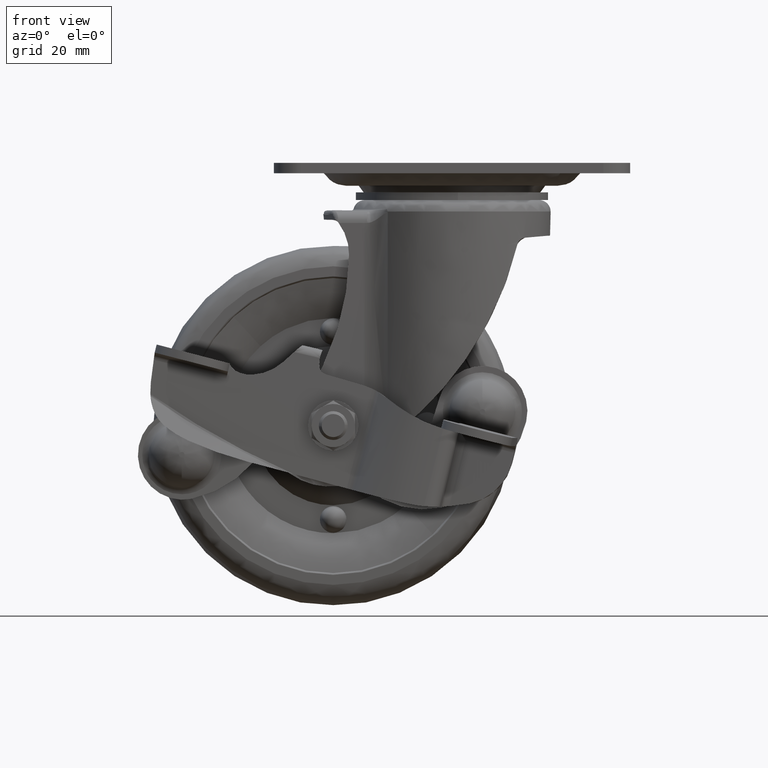
[diagram: clean part render]
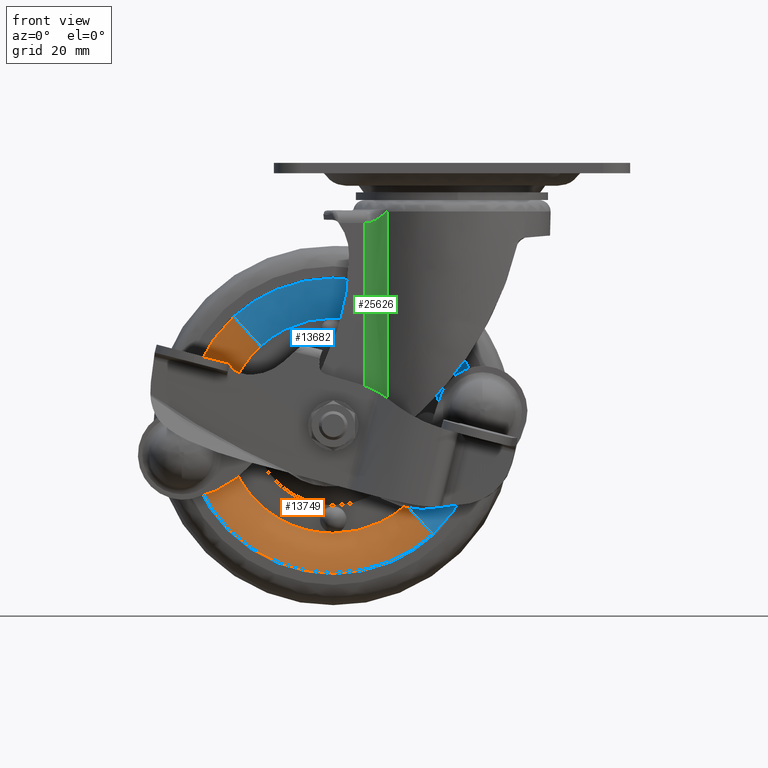
[diagram: same view with three faces highlighted in distinct colors, each labeled with its STEP entity id]
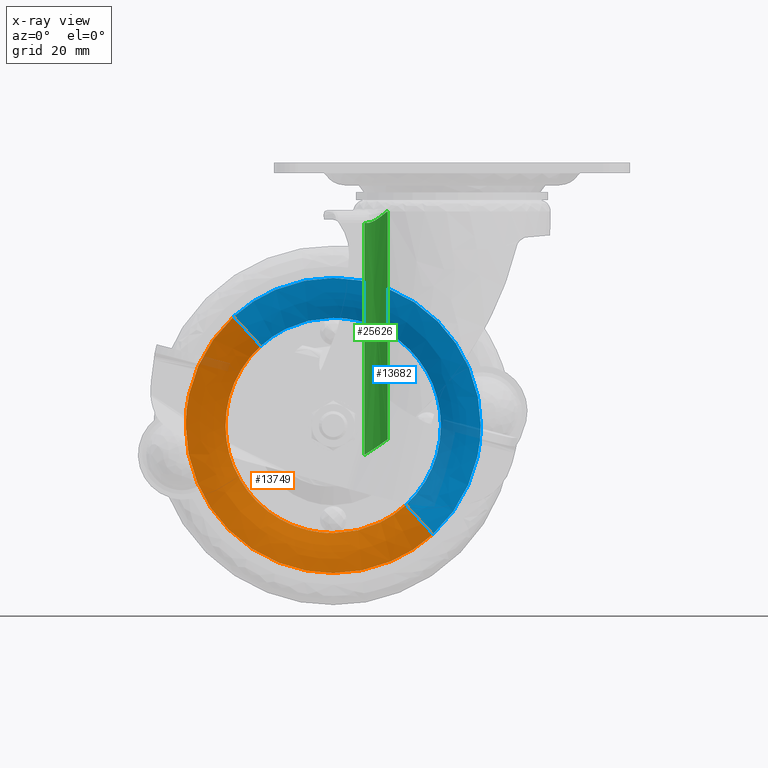
[diagram: x-ray of the same camera — body ghosted, the three highlighted faces saturated]
A machine part, front view with three faces highlighted in distinct colors.
The next image is the same camera in x-ray (body ghosted, the three faces saturated) — at least one of them is partly hidden behind the body in this view.
Their STEP definitions:

[orange] entity #13749 — the highlighted face is a freeform B-spline surface patch.
#13463=CARTESIAN_POINT('',(-73.999382012695506,-10.500000505750830,-72.999581000010949));
#13464=VERTEX_POINT('',#13463);
#13478=CARTESIAN_POINT('',(-60.688094026901013,-10.500000503208749,-42.761695116296387));
#13479=VERTEX_POINT('',#13478);
#13480=CARTESIAN_POINT('',(-60.688094026901013,-10.500000503208749,-42.761695116296394));
#13481=CARTESIAN_POINT('',(-73.999382012583482,-10.500000504627709,-54.950697973804225));
#13482=CARTESIAN_POINT('',(-73.999382012695506,-10.500000505750830,-72.999581000010949));
#13490=(BOUNDED_CURVE()B_SPLINE_CURVE(2,(#13480,#13481,#13482),.UNSPECIFIED.,.F.,.U.)B_SPLINE_CURVE_WITH_KNOTS((3,3),(0.618362513836595,0.750000000000000),.UNSPECIFIED.)CURVE()GEOMETRIC_REPRESENTATION_ITEM()RATIONAL_B_SPLINE_CURVE((0.853966311196061,0.845777091844356,1.0))REPRESENTATION_ITEM(''));
#13491=EDGE_CURVE('',#13479,#13464,#13490,.T.);
#13538=CARTESIAN_POINT('',(-32.999588012695313,-10.500000502495251,-113.999375000011100));
#13539=VERTEX_POINT('',#13538);
#13540=CARTESIAN_POINT('',(-5.311081998489616,-10.500000503208760,-103.237466883725500));
#13541=VERTEX_POINT('',#13540);
#13542=CARTESIAN_POINT('',(-32.999588012695313,-10.500000502495251,-113.999375000011100));
#13543=CARTESIAN_POINT('',(-17.063877520711362,-10.500000502721401,-113.999374999888770));
#13544=CARTESIAN_POINT('',(-5.311081998489615,-10.500000503208756,-103.237466883725500));
#13552=(BOUNDED_CURVE()B_SPLINE_CURVE(2,(#13542,#13543,#13544),.UNSPECIFIED.,.F.,.U.)B_SPLINE_CURVE_WITH_KNOTS((3,3),(0.0,0.118362513836595),.UNSPECIFIED.)CURVE()GEOMETRIC_REPRESENTATION_ITEM()RATIONAL_B_SPLINE_CURVE((1.0,0.861329689342191,0.853966311196061))REPRESENTATION_ITEM(''));
#13553=EDGE_CURVE('',#13539,#13541,#13552,.T.);
#13555=CARTESIAN_POINT('',(-73.999382012695506,-10.500000505750830,-72.999581000010949));
#13556=CARTESIAN_POINT('',(-73.999382012695534,-10.500000504123038,-113.999375000011140));
#13557=CARTESIAN_POINT('',(-32.999588012695313,-10.500000502495251,-113.999375000011100));
#13565=(BOUNDED_CURVE()B_SPLINE_CURVE(2,(#13555,#13556,#13557),.UNSPECIFIED.,.F.,.U.)B_SPLINE_CURVE_WITH_KNOTS((3,3),(0.750000000000000,1.0),.UNSPECIFIED.)CURVE()GEOMETRIC_REPRESENTATION_ITEM()RATIONAL_B_SPLINE_CURVE((1.0,0.707106781186548,1.0))REPRESENTATION_ITEM(''));
#13566=EDGE_CURVE('',#13464,#13539,#13565,.T.);
#13620=CARTESIAN_POINT('',(-53.204744205353911,-6.100000502573137,-50.934063745186357));
#13621=VERTEX_POINT('',#13620);
#13622=CARTESIAN_POINT('',(-60.688094026901013,-10.500000503208749,-42.761695116296394));
#13623=CARTESIAN_POINT('',(-56.600017830324013,-9.591776377509113,-47.226175122995073));
#13624=CARTESIAN_POINT('',(-53.204744205353911,-6.100000502573137,-50.934063745186371));
#13632=(BOUNDED_CURVE()B_SPLINE_CURVE(2,(#13622,#13623,#13624),.UNSPECIFIED.,.F.,.U.)B_SPLINE_CURVE_WITH_KNOTS((3,3),(-1.418136675754245,-0.578191165221856),.UNSPECIFIED.)CURVE()GEOMETRIC_REPRESENTATION_ITEM()RATIONAL_B_SPLINE_CURVE((0.942412795695981,0.917902062761239,0.942628053802595))REPRESENTATION_ITEM(''));
#13633=EDGE_CURVE('',#13479,#13621,#13632,.T.);
#13650=CARTESIAN_POINT('',(-12.794431820036710,-6.100000502573135,-95.065098254835533));
#13651=VERTEX_POINT('',#13650);
#13667=CARTESIAN_POINT('',(-5.311081998489616,-10.500000503208756,-103.237466883725500));
#13668=CARTESIAN_POINT('',(-9.399158195066612,-9.591776377509111,-98.772986877026796));
#13669=CARTESIAN_POINT('',(-12.794431820036706,-6.100000502573135,-95.065098254835547));
#13677=(BOUNDED_CURVE()B_SPLINE_CURVE(2,(#13667,#13668,#13669),.UNSPECIFIED.,.F.,.U.)B_SPLINE_CURVE_WITH_KNOTS((3,3),(-1.418136675754244,-0.578191165221856),.UNSPECIFIED.)CURVE()GEOMETRIC_REPRESENTATION_ITEM()RATIONAL_B_SPLINE_CURVE((0.942412795695981,0.917902062761239,0.942628053802595))REPRESENTATION_ITEM(''));
#13678=EDGE_CURVE('',#13541,#13651,#13677,.T.);
#13683=CARTESIAN_POINT('',(-60.228479043852353,-10.581583422347361,-41.541971075206718));
#13684=CARTESIAN_POINT('',(-60.654732315104290,-10.581583422347364,-41.932286598917656));
#13685=CARTESIAN_POINT('',(-91.758385500640699,-10.581583422347364,-70.413566394798934));
#13686=CARTESIAN_POINT('',(-63.671994059274020,-10.581583422347363,-101.085972441377630));
#13687=CARTESIAN_POINT('',(-35.585602617907327,-10.581583422347364,-131.758378487956350));
#13688=CARTESIAN_POINT('',(-4.481949432351318,-10.581583422347359,-103.277098692057170));
#13689=CARTESIAN_POINT('',(-4.055696161080267,-10.581583422347364,-102.886783168328720));
#13690=CARTESIAN_POINT('',(-55.843250861637699,-9.731324561018456,-46.608236808523472));
#13691=CARTESIAN_POINT('',(-56.200855804328768,-9.731324561018457,-46.935691798084328));
#13692=CARTESIAN_POINT('',(-82.295248188058366,-9.731324561018457,-70.830045498315073));
#13693=CARTESIAN_POINT('',(-58.732185851224784,-9.731324561018456,-96.562643336844516));
#13694=CARTESIAN_POINT('',(-35.169123514391195,-9.731324561018457,-122.295241175373990));
#13695=CARTESIAN_POINT('',(-9.074731130645183,-9.731324561018456,-98.400887475128229));
#13696=CARTESIAN_POINT('',(-8.717126187938085,-9.731324561018457,-98.073432485552715));
#13697=CARTESIAN_POINT('',(-52.270632813744697,-5.755278955219271,-50.735691901436901));
#13698=CARTESIAN_POINT('',(-52.572310391340153,-5.755278955219270,-51.011934805908169));
#13699=CARTESIAN_POINT('',(-74.585689244298351,-5.755278955219271,-71.169348426228069));
#13700=CARTESIAN_POINT('',(-54.707754915388279,-5.755278955219270,-92.877515328921007));
#13701=CARTESIAN_POINT('',(-34.829820586478220,-5.755278955219271,-114.585682231613970));
#13702=CARTESIAN_POINT('',(-12.816441733506172,-5.755278955219270,-94.428268611281425));
#13703=CARTESIAN_POINT('',(-12.514764155897200,-5.755278955219270,-94.152025706797758));
#13711=(BOUNDED_SURFACE()B_SPLINE_SURFACE(2,2,((#13683,#13690,#13697),(#13684,#13691,#13698),(#13685,#13692,#13699),(#13686,#13693,#13700),(#13687,#13694,#13701),(#13688,#13695,#13702),(#13689,#13696,#13703)),.UNSPECIFIED.,.F.,.F.,.U.)B_SPLINE_SURFACE_WITH_KNOTS((3,1,2,1,3),(3,3),(0.0,1.378137014883423,70.284987760087290,139.191838505291200,140.569975520237510),(0.0,13.291669699395610),.UNSPECIFIED.)GEOMETRIC_REPRESENTATION_ITEM()RATIONAL_B_SPLINE_SURFACE(((0.956055445724973,0.926043480057041,0.956294979620234),(0.950519856054866,0.920681660567182,0.950758003041698),(0.668204782875258,0.647228866580368,0.668372197532211),(0.944984266384759,0.915319841077323,0.945221026463162),(0.668204782875258,0.647228866580368,0.668372197532211),(0.950519856055118,0.920681660567427,0.950758003041950),(0.956055445725478,0.926043480057530,0.956294979620739)))REPRESENTATION_ITEM('')SURFACE());
#13712=ORIENTED_EDGE('',*,*,#13553,.T.);
#13713=ORIENTED_EDGE('',*,*,#13678,.T.);
#13714=CARTESIAN_POINT('',(-32.999588012695313,-6.100000502495220,-102.918394286737100));
#13715=VERTEX_POINT('',#13714);
#13716=CARTESIAN_POINT('',(-32.999588012695313,-6.100000502495220,-102.918394286737100));
#13717=CARTESIAN_POINT('',(-21.370808931376345,-6.100000502534178,-102.918394286778420));
#13718=CARTESIAN_POINT('',(-12.794431820036708,-6.100000502573135,-95.065098254835533));
#13726=(BOUNDED_CURVE()B_SPLINE_CURVE(2,(#13716,#13717,#13718),.UNSPECIFIED.,.F.,.U.)B_SPLINE_CURVE_WITH_KNOTS((3,3),(0.0,0.118362513836530),.UNSPECIFIED.)CURVE()GEOMETRIC_REPRESENTATION_ITEM()RATIONAL_B_SPLINE_CURVE((1.0,0.861329689342268,0.853966311196069))REPRESENTATION_ITEM(''));
#13727=EDGE_CURVE('',#13715,#13651,#13726,.T.);
#13728=ORIENTED_EDGE('',*,*,#13727,.F.);
#13729=CARTESIAN_POINT('',(-53.204744205353897,-6.100000502573137,-50.934063745186378));
#13730=CARTESIAN_POINT('',(-62.918401299490704,-6.100000502566471,-59.828754792881341));
#13731=CARTESIAN_POINT('',(-62.918401299474013,-6.100000502549321,-72.999580999953494));
#13732=CARTESIAN_POINT('',(-62.918401299436141,-6.100000502510362,-102.918394286720970));
#13733=CARTESIAN_POINT('',(-32.999588012695313,-6.100000502495220,-102.918394286737100));
#13741=(BOUNDED_CURVE()B_SPLINE_CURVE(2,(#13729,#13730,#13731,#13732,#13733),.UNSPECIFIED.,.F.,.U.)B_SPLINE_CURVE_WITH_KNOTS((3,2,3),(0.618362513836530,0.750000000000000,1.0),.UNSPECIFIED.)CURVE()GEOMETRIC_REPRESENTATION_ITEM()RATIONAL_B_SPLINE_CURVE((0.853966311196069,0.845777091844280,1.0,0.707106781186547,1.0))REPRESENTATION_ITEM(''));
#13742=EDGE_CURVE('',#13621,#13715,#13741,.T.);
#13743=ORIENTED_EDGE('',*,*,#13742,.F.);
#13744=ORIENTED_EDGE('',*,*,#13633,.F.);
#13745=ORIENTED_EDGE('',*,*,#13491,.T.);
#13746=ORIENTED_EDGE('',*,*,#13566,.T.);
#13747=EDGE_LOOP('',(#13712,#13713,#13728,#13743,#13744,#13745,#13746));
#13748=FACE_OUTER_BOUND('',#13747,.T.);
#13749=ADVANCED_FACE('',(#13748),#13711,.T.);

[blue] entity #13682 — the highlighted face is a freeform B-spline surface patch.
#13431=CARTESIAN_POINT('',(8.000205987304881,-10.500000505750830,-72.999581000010963));
#13432=VERTEX_POINT('',#13431);
#13433=CARTESIAN_POINT('',(-32.999588012695313,-10.500000502495221,-31.999787000010741));
#13434=VERTEX_POINT('',#13433);
#13435=CARTESIAN_POINT('',(8.000205987304881,-10.500000505750830,-72.999581000010963));
#13436=CARTESIAN_POINT('',(8.000205987304904,-10.500000504123024,-31.999787000010738));
#13437=CARTESIAN_POINT('',(-32.999588012695313,-10.500000502495221,-31.999787000010741));
#13445=(BOUNDED_CURVE()B_SPLINE_CURVE(2,(#13435,#13436,#13437),.UNSPECIFIED.,.F.,.U.)B_SPLINE_CURVE_WITH_KNOTS((3,3),(0.250000000000000,0.500000000000000),.UNSPECIFIED.)CURVE()GEOMETRIC_REPRESENTATION_ITEM()RATIONAL_B_SPLINE_CURVE((1.0,0.707106781186547,1.0))REPRESENTATION_ITEM(''));
#13446=EDGE_CURVE('',#13432,#13434,#13445,.T.);
#13478=CARTESIAN_POINT('',(-60.688094026901013,-10.500000503208749,-42.761695116296387));
#13479=VERTEX_POINT('',#13478);
#13493=CARTESIAN_POINT('',(-32.999588012695313,-10.500000502495221,-31.999787000010741));
#13494=CARTESIAN_POINT('',(-48.935298504679267,-10.500000502721381,-31.999787000133068));
#13495=CARTESIAN_POINT('',(-60.688094026901013,-10.500000503208749,-42.761695116296394));
#13503=(BOUNDED_CURVE()B_SPLINE_CURVE(2,(#13493,#13494,#13495),.UNSPECIFIED.,.F.,.U.)B_SPLINE_CURVE_WITH_KNOTS((3,3),(0.500000000000000,0.618362513836595),.UNSPECIFIED.)CURVE()GEOMETRIC_REPRESENTATION_ITEM()RATIONAL_B_SPLINE_CURVE((1.0,0.861329689342191,0.853966311196061))REPRESENTATION_ITEM(''));
#13504=EDGE_CURVE('',#13434,#13479,#13503,.T.);
#13540=CARTESIAN_POINT('',(-5.311081998489616,-10.500000503208760,-103.237466883725500));
#13541=VERTEX_POINT('',#13540);
#13572=CARTESIAN_POINT('',(-5.311081998489615,-10.500000503208756,-103.237466883725500));
#13573=CARTESIAN_POINT('',(8.000205987192857,-10.500000504627714,-91.048464026217701));
#13574=CARTESIAN_POINT('',(8.000205987304881,-10.500000505750831,-72.999581000010963));
#13582=(BOUNDED_CURVE()B_SPLINE_CURVE(2,(#13572,#13573,#13574),.UNSPECIFIED.,.F.,.U.)B_SPLINE_CURVE_WITH_KNOTS((3,3),(0.118362513836595,0.250000000000000),.UNSPECIFIED.)CURVE()GEOMETRIC_REPRESENTATION_ITEM()RATIONAL_B_SPLINE_CURVE((0.853966311196061,0.845777091844356,1.000000000000000))REPRESENTATION_ITEM(''));
#13583=EDGE_CURVE('',#13541,#13432,#13582,.T.);
#13588=CARTESIAN_POINT('',(-5.770696981538240,-10.581583422347366,-104.457190924815120));
#13589=CARTESIAN_POINT('',(-5.344443710286324,-10.581583422347366,-104.066875401104210));
#13590=CARTESIAN_POINT('',(25.759209475250092,-10.581583422347364,-75.585595605222963));
#13591=CARTESIAN_POINT('',(-2.327181966116594,-10.581583422347363,-44.913189558644248));
#13592=CARTESIAN_POINT('',(-30.413573407483298,-10.581583422347364,-14.240783512065542));
#13593=CARTESIAN_POINT('',(-61.517226593039304,-10.581583422347359,-42.722063307964717));
#13594=CARTESIAN_POINT('',(-61.943479864310369,-10.581583422347363,-43.112378831693164));
#13595=CARTESIAN_POINT('',(-10.155925163752888,-9.731324561018457,-99.390925191498411));
#13596=CARTESIAN_POINT('',(-9.798320221061847,-9.731324561018456,-99.063470201937577));
#13597=CARTESIAN_POINT('',(16.296072162667748,-9.731324561018457,-75.169116501706853));
#13598=CARTESIAN_POINT('',(-7.266990174165834,-9.731324561018456,-49.436518663177360));
#13599=CARTESIAN_POINT('',(-30.830052510999408,-9.731324561018457,-23.703920824647895));
#13600=CARTESIAN_POINT('',(-56.924444894745434,-9.731324561018456,-47.598274524893654));
#13601=CARTESIAN_POINT('',(-57.282049837452526,-9.731324561018456,-47.925729514469197));
#13602=CARTESIAN_POINT('',(-13.728543211645903,-5.755278955219270,-95.263470098584989));
#13603=CARTESIAN_POINT('',(-13.426865634050461,-5.755278955219270,-94.987227194113729));
#13604=CARTESIAN_POINT('',(8.586513218907712,-5.755278955219271,-74.829813573793871));
#13605=CARTESIAN_POINT('',(-11.291421110002348,-5.755278955219270,-53.121646671100891));
#13606=CARTESIAN_POINT('',(-31.169355438912408,-5.755278955219271,-31.413479768407935));
#13607=CARTESIAN_POINT('',(-53.182734291884451,-5.755278955219271,-51.570893388740487));
#13608=CARTESIAN_POINT('',(-53.484411869493428,-5.755278955219270,-51.847136293224146));
#13616=(BOUNDED_SURFACE()B_SPLINE_SURFACE(2,2,((#13588,#13595,#13602),(#13589,#13596,#13603),(#13590,#13597,#13604),(#13591,#13598,#13605),(#13592,#13599,#13606),(#13593,#13600,#13607),(#13594,#13601,#13608)),.UNSPECIFIED.,.F.,.F.,.U.)B_SPLINE_SURFACE_WITH_KNOTS((3,1,2,1,3),(3,3),(0.0,1.378137014883362,70.284987760087233,139.191838505291090,140.569975520237510),(0.0,13.291669699395550),.UNSPECIFIED.)GEOMETRIC_REPRESENTATION_ITEM()RATIONAL_B_SPLINE_SURFACE(((0.956055445724972,0.926043480057040,0.956294979620233),(0.950519856054866,0.920681660567182,0.950758003041697),(0.668204782875258,0.647228866580368,0.668372197532211),(0.944984266384759,0.915319841077323,0.945221026463162),(0.668204782875258,0.647228866580368,0.668372197532211),(0.950519856055118,0.920681660567427,0.950758003041950),(0.956055445725478,0.926043480057530,0.956294979620739)))REPRESENTATION_ITEM('')SURFACE());
#13617=ORIENTED_EDGE('',*,*,#13583,.T.);
#13618=ORIENTED_EDGE('',*,*,#13446,.T.);
#13619=ORIENTED_EDGE('',*,*,#13504,.T.);
#13620=CARTESIAN_POINT('',(-53.204744205353911,-6.100000502573137,-50.934063745186357));
#13621=VERTEX_POINT('',#13620);
#13622=CARTESIAN_POINT('',(-60.688094026901013,-10.500000503208749,-42.761695116296394));
#13623=CARTESIAN_POINT('',(-56.600017830324013,-9.591776377509113,-47.226175122995073));
#13624=CARTESIAN_POINT('',(-53.204744205353911,-6.100000502573137,-50.934063745186371));
#13632=(BOUNDED_CURVE()B_SPLINE_CURVE(2,(#13622,#13623,#13624),.UNSPECIFIED.,.F.,.U.)B_SPLINE_CURVE_WITH_KNOTS((3,3),(-1.418136675754245,-0.578191165221856),.UNSPECIFIED.)CURVE()GEOMETRIC_REPRESENTATION_ITEM()RATIONAL_B_SPLINE_CURVE((0.942412795695981,0.917902062761239,0.942628053802595))REPRESENTATION_ITEM(''));
#13633=EDGE_CURVE('',#13479,#13621,#13632,.T.);
#13634=ORIENTED_EDGE('',*,*,#13633,.T.);
#13635=CARTESIAN_POINT('',(-32.999588012695313,-6.100000502495201,-43.080767713284843));
#13636=VERTEX_POINT('',#13635);
#13637=CARTESIAN_POINT('',(-32.999588012695313,-6.100000502495201,-43.080767713284843));
#13638=CARTESIAN_POINT('',(-44.628367094014273,-6.100000502534169,-43.080767713243468));
#13639=CARTESIAN_POINT('',(-53.204744205353897,-6.100000502573137,-50.934063745186378));
#13647=(BOUNDED_CURVE()B_SPLINE_CURVE(2,(#13637,#13638,#13639),.UNSPECIFIED.,.F.,.U.)B_SPLINE_CURVE_WITH_KNOTS((3,3),(0.500000000000000,0.618362513836530),.UNSPECIFIED.)CURVE()GEOMETRIC_REPRESENTATION_ITEM()RATIONAL_B_SPLINE_CURVE((1.0,0.861329689342268,0.853966311196069))REPRESENTATION_ITEM(''));
#13648=EDGE_CURVE('',#13636,#13621,#13647,.T.);
#13649=ORIENTED_EDGE('',*,*,#13648,.F.);
#13650=CARTESIAN_POINT('',(-12.794431820036710,-6.100000502573135,-95.065098254835533));
#13651=VERTEX_POINT('',#13650);
#13652=CARTESIAN_POINT('',(-12.794431820036708,-6.100000502573135,-95.065098254835533));
#13653=CARTESIAN_POINT('',(-3.080774725899933,-6.100000502566465,-86.170407207140570));
#13654=CARTESIAN_POINT('',(-3.080774725916609,-6.100000502549313,-72.999581000068403));
#13655=CARTESIAN_POINT('',(-3.080774725954488,-6.100000502510346,-43.080767713300915));
#13656=CARTESIAN_POINT('',(-32.999588012695313,-6.100000502495201,-43.080767713284843));
#13664=(BOUNDED_CURVE()B_SPLINE_CURVE(2,(#13652,#13653,#13654,#13655,#13656),.UNSPECIFIED.,.F.,.U.)B_SPLINE_CURVE_WITH_KNOTS((3,2,3),(0.118362513836530,0.250000000000000,0.500000000000000),.UNSPECIFIED.)CURVE()GEOMETRIC_REPRESENTATION_ITEM()RATIONAL_B_SPLINE_CURVE((0.853966311196069,0.845777091844280,1.0,0.707106781186547,1.0))REPRESENTATION_ITEM(''));
#13665=EDGE_CURVE('',#13651,#13636,#13664,.T.);
#13666=ORIENTED_EDGE('',*,*,#13665,.F.);
#13667=CARTESIAN_POINT('',(-5.311081998489616,-10.500000503208756,-103.237466883725500));
#13668=CARTESIAN_POINT('',(-9.399158195066612,-9.591776377509111,-98.772986877026796));
#13669=CARTESIAN_POINT('',(-12.794431820036706,-6.100000502573135,-95.065098254835547));
#13677=(BOUNDED_CURVE()B_SPLINE_CURVE(2,(#13667,#13668,#13669),.UNSPECIFIED.,.F.,.U.)B_SPLINE_CURVE_WITH_KNOTS((3,3),(-1.418136675754244,-0.578191165221856),.UNSPECIFIED.)CURVE()GEOMETRIC_REPRESENTATION_ITEM()RATIONAL_B_SPLINE_CURVE((0.942412795695981,0.917902062761239,0.942628053802595))REPRESENTATION_ITEM(''));
#13678=EDGE_CURVE('',#13541,#13651,#13677,.T.);
#13679=ORIENTED_EDGE('',*,*,#13678,.F.);
#13680=EDGE_LOOP('',(#13617,#13618,#13619,#13634,#13649,#13666,#13679));
#13681=FACE_OUTER_BOUND('',#13680,.T.);
#13682=ADVANCED_FACE('',(#13681),#13616,.T.);

[green] entity #25626 — the highlighted face is a freeform B-spline surface patch.
#23697=CARTESIAN_POINT('',(-17.846202660859849,-20.824112840347350,-13.547320495268080));
#23698=VERTEX_POINT('',#23697);
#23704=CARTESIAN_POINT('',(-17.846202660859849,-20.824112840347350,-76.803480371900108));
#23705=VERTEX_POINT('',#23704);
#23706=CARTESIAN_POINT('',(-17.846202660859849,-20.824112840347350,-13.547320495268080));
#23707=CARTESIAN_POINT('',(-17.846202660859849,-20.824112840347350,-76.803480371900108));
#23708=QUASI_UNIFORM_CURVE('',1,(#23706,#23707),.UNSPECIFIED.,.F.,.U.);
#23709=EDGE_CURVE('',#23698,#23705,#23708,.T.);
#24877=CARTESIAN_POINT('',(-24.353478015776801,-18.417225999999999,-16.728105268373451));
#24878=VERTEX_POINT('',#24877);
#24953=CARTESIAN_POINT('',(-23.617208933350948,-18.444367440977700,-16.709889579108300));
#24954=VERTEX_POINT('',#24953);
#24970=CARTESIAN_POINT('',(-23.617208933350948,-18.444367440977729,-16.709889579108339));
#24971=CARTESIAN_POINT('',(-23.861086529291171,-18.426362619920209,-16.716538362489381));
#24972=CARTESIAN_POINT('',(-24.106492340434698,-18.417225999999999,-16.722674661624389));
#24973=CARTESIAN_POINT('',(-24.353478015776801,-18.417225999999999,-16.728105268373451));
#24974=QUASI_UNIFORM_CURVE('',3,(#24970,#24971,#24972,#24973),.UNSPECIFIED.,.F.,.U.);
#24975=EDGE_CURVE('',#24954,#24878,#24974,.T.);
#25174=CARTESIAN_POINT('',(-17.846202660859849,-20.824112840347350,-13.547320495268099));
#25175=CARTESIAN_POINT('',(-17.904596503798071,-20.774069490927790,-13.547320495268110));
#25176=CARTESIAN_POINT('',(-17.962406342421769,-20.725691643876178,-13.556173482580711));
#25177=CARTESIAN_POINT('',(-18.048475139403749,-20.655247308952472,-13.580290992446690));
#25178=CARTESIAN_POINT('',(-18.077059531399961,-20.632118164788380,-13.590120053332029));
#25179=CARTESIAN_POINT('',(-18.134073315988111,-20.586495626838971,-13.612850746395560));
#25180=CARTESIAN_POINT('',(-18.162358094645320,-20.564119746971709,-13.625701551303971));
#25181=CARTESIAN_POINT('',(-18.245672630094859,-20.498912532641100,-13.667282072413229));
#25182=CARTESIAN_POINT('',(-18.299679162015959,-20.457581563648560,-13.699176050114280));
#25183=CARTESIAN_POINT('',(-18.406047342665840,-20.377792655324800,-13.767994780325511));
#25184=CARTESIAN_POINT('',(-18.458397710121979,-20.339347295970040,-13.804947141875420));
#25185=CARTESIAN_POINT('',(-18.614214180110078,-20.227156690576081,-13.920537299808981));
#25186=CARTESIAN_POINT('',(-18.716515090694109,-20.156489314078680,-14.003747738962090));
#25187=CARTESIAN_POINT('',(-18.921353419426541,-20.020372780929819,-14.174894493176300));
#25188=CARTESIAN_POINT('',(-19.023915261976072,-19.954932523781370,-14.263051290502830));
#25189=CARTESIAN_POINT('',(-19.333488164284901,-19.765156768404111,-14.529396569812899));
#25190=CARTESIAN_POINT('',(-19.542234375605108,-19.647377511539119,-14.709120381502411));
#25191=CARTESIAN_POINT('',(-19.971126445333891,-19.425379549537851,-15.061417102677609));
#25192=CARTESIAN_POINT('',(-20.191119304158178,-19.321279375457362,-15.234270775808140));
#25193=CARTESIAN_POINT('',(-20.647009394480332,-19.126178405672398,-15.566423026288520));
#25194=CARTESIAN_POINT('',(-20.882833588736510,-19.035193211715239,-15.725830433365520));
#25195=CARTESIAN_POINT('',(-21.252860405197200,-18.909168973045659,-15.949234942668239));
#25196=CARTESIAN_POINT('',(-21.379116020929722,-18.868859031382041,-16.021168511690050));
#25197=CARTESIAN_POINT('',(-21.637359745224650,-18.792214696933488,-16.158079154568799));
#25198=CARTESIAN_POINT('',(-21.768322820296390,-18.756180104748019,-16.222519286138368));
#25199=CARTESIAN_POINT('',(-22.167476748712751,-18.655221126003489,-16.401798092512959));
#25200=CARTESIAN_POINT('',(-22.441822109539402,-18.597383802291880,-16.502882590773300));
#25201=CARTESIAN_POINT('',(-22.870084578227399,-18.526802541807189,-16.615240254679680));
#25202=CARTESIAN_POINT('',(-23.015650689223339,-18.505983458030659,-16.646093278446060));
#25203=CARTESIAN_POINT('',(-23.239108002494881,-18.479227854304249,-16.680118709550850));
#25204=CARTESIAN_POINT('',(-23.314518860960501,-18.471055215203670,-16.689400475271871));
#25205=CARTESIAN_POINT('',(-23.465463003691450,-18.456443965238691,-16.703231545162570));
#25206=CARTESIAN_POINT('',(-23.541197117786400,-18.449979187035058,-16.707817285037471));
#25207=CARTESIAN_POINT('',(-23.617208933350948,-18.444367440977700,-16.709889579108349));
#25208=B_SPLINE_CURVE_WITH_KNOTS('',3,(#25174,#25175,#25176,#25177,#25178,#25179,#25180,#25181,#25182,#25183,#25184,#25185,#25186,#25187,#25188,#25189,#25190,#25191,#25192,#25193,#25194,#25195,#25196,#25197,#25198,#25199,#25200,#25201,#25202,#25203,#25204,#25205,#25206,#25207),.UNSPECIFIED.,.F.,.U.,(4,2,2,2,2,2,2,2,2,2,2,2,2,2,2,2,4),(0.0,0.031250000000002,0.046875000000002,0.062500000000002,0.093750000000002,0.125000000000002,0.187500000000001,0.250000000000000,0.375000000000000,0.500000000000000,0.625000000000000,0.687500000000000,0.750000000000000,0.875000000000000,0.937500000000001,0.968750000000001,1.0),.UNSPECIFIED.);
#25209=EDGE_CURVE('',#23698,#24954,#25208,.T.);
#25581=CARTESIAN_POINT('',(-24.615247498855549,-18.420652750244429,-82.884637212372041));
#25582=CARTESIAN_POINT('',(-24.615247498855549,-18.420652750244429,-11.813887577340481));
#25583=CARTESIAN_POINT('',(-20.568215826878387,-18.314677496294017,-82.884637212372027));
#25584=CARTESIAN_POINT('',(-20.568215826878387,-18.314677496294017,-11.813887577340482));
#25585=CARTESIAN_POINT('',(-17.587245826013401,-21.053931767510743,-82.884637212372041));
#25586=CARTESIAN_POINT('',(-17.587245826013401,-21.053931767510743,-11.813887577340479));
#25594=(BOUNDED_SURFACE()B_SPLINE_SURFACE(1,2,((#25581,#25583,#25585),(#25582,#25584,#25586)),.UNSPECIFIED.,.F.,.F.,.U.)B_SPLINE_SURFACE_WITH_KNOTS((2,2),(3,3),(0.0,71.070749635031575),(0.0,7.789758328365145),.UNSPECIFIED.)GEOMETRIC_REPRESENTATION_ITEM()RATIONAL_B_SPLINE_SURFACE(((1.0,0.925473420814103,0.996878972325521),(1.0,0.925473420814103,0.996878972325521)))REPRESENTATION_ITEM('')SURFACE());
#25595=ORIENTED_EDGE('',*,*,#23709,.F.);
#25596=ORIENTED_EDGE('',*,*,#25209,.T.);
#25597=ORIENTED_EDGE('',*,*,#24975,.T.);
#25598=CARTESIAN_POINT('',(-24.353478015776801,-18.417225999999950,-81.193483146101215));
#25599=VERTEX_POINT('',#25598);
#25600=CARTESIAN_POINT('',(-24.353478015776801,-18.417225999999950,-81.193483146101215));
#25601=CARTESIAN_POINT('',(-24.353478015776801,-18.417225999999999,-16.728105268373451));
#25602=QUASI_UNIFORM_CURVE('',1,(#25600,#25601),.UNSPECIFIED.,.F.,.U.);
#25603=EDGE_CURVE('',#25599,#24878,#25602,.T.);
#25604=ORIENTED_EDGE('',*,*,#25603,.F.);
#25605=CARTESIAN_POINT('',(-17.846202660859849,-20.824112840347350,-76.803480371900108));
#25606=CARTESIAN_POINT('',(-18.078741763671790,-20.624827522064031,-76.974726707131424));
#25607=CARTESIAN_POINT('',(-18.316855761814800,-20.439233831487229,-77.148444673663818));
#25608=CARTESIAN_POINT('',(-18.803646987209479,-20.093252019248279,-77.500001519663840));
#25609=CARTESIAN_POINT('',(-19.052327035469801,-19.932872737843301,-77.677843108363831));
#25610=CARTESIAN_POINT('',(-19.813806757696032,-19.487657542293260,-78.216690353783406));
#25611=CARTESIAN_POINT('',(-20.341937034555560,-19.238448704159030,-78.582948864625351));
#25612=CARTESIAN_POINT('',(-21.028140563242669,-18.985177882945031,-79.047958195007695));
#25613=CARTESIAN_POINT('',(-21.166692155111260,-18.937459838021962,-79.141325101571496));
#25614=CARTESIAN_POINT('',(-21.446464053645581,-18.847960592901309,-79.328771146035095));
#25615=CARTESIAN_POINT('',(-21.587859557832900,-18.806132396849488,-79.422966215916659));
#25616=CARTESIAN_POINT('',(-22.014955746052259,-18.690028232514969,-79.705820421794627));
#25617=CARTESIAN_POINT('',(-22.301914843087651,-18.625525238331740,-79.893660535799668));
#25618=CARTESIAN_POINT('',(-23.169503013818922,-18.470193064239972,-80.454840606576809));
#25619=CARTESIAN_POINT('',(-23.756810721950721,-18.417225999999999,-80.825823504023106));
#25620=CARTESIAN_POINT('',(-24.353478015776801,-18.417225999999999,-81.193483146101215));
#25621=B_SPLINE_CURVE_WITH_KNOTS('',3,(#25605,#25606,#25607,#25608,#25609,#25610,#25611,#25612,#25613,#25614,#25615,#25616,#25617,#25618,#25619,#25620),.UNSPECIFIED.,.F.,.U.,(4,2,2,2,2,2,2,4),(0.0,0.125000000000001,0.250000000000002,0.500000000000004,0.562500000000003,0.625000000000003,0.750000000000002,1.0),.UNSPECIFIED.);
#25622=EDGE_CURVE('',#23705,#25599,#25621,.T.);
#25623=ORIENTED_EDGE('',*,*,#25622,.F.);
#25624=EDGE_LOOP('',(#25595,#25596,#25597,#25604,#25623));
#25625=FACE_OUTER_BOUND('',#25624,.T.);
#25626=ADVANCED_FACE('',(#25625),#25594,.F.);